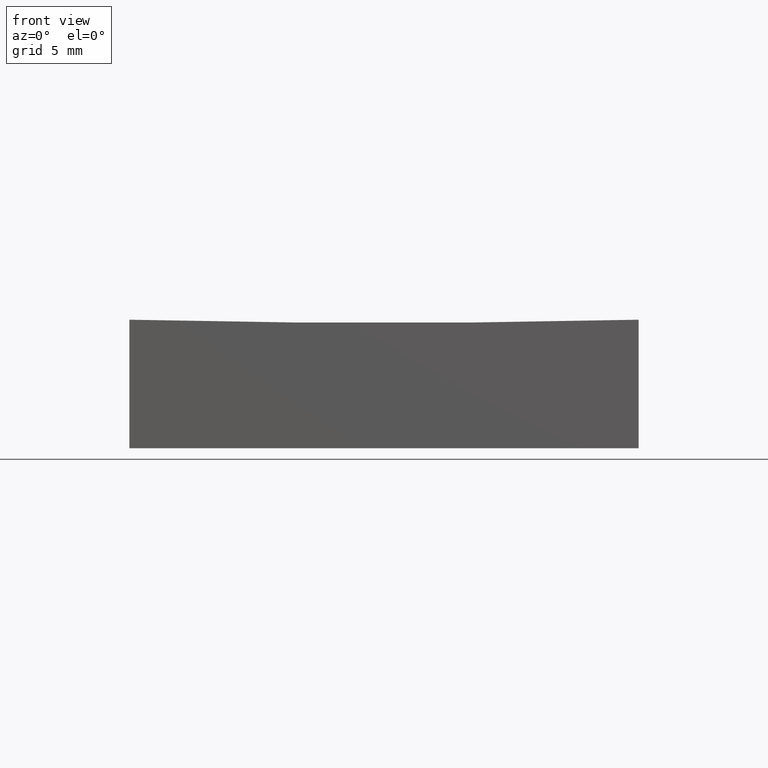
[diagram: clean part render]
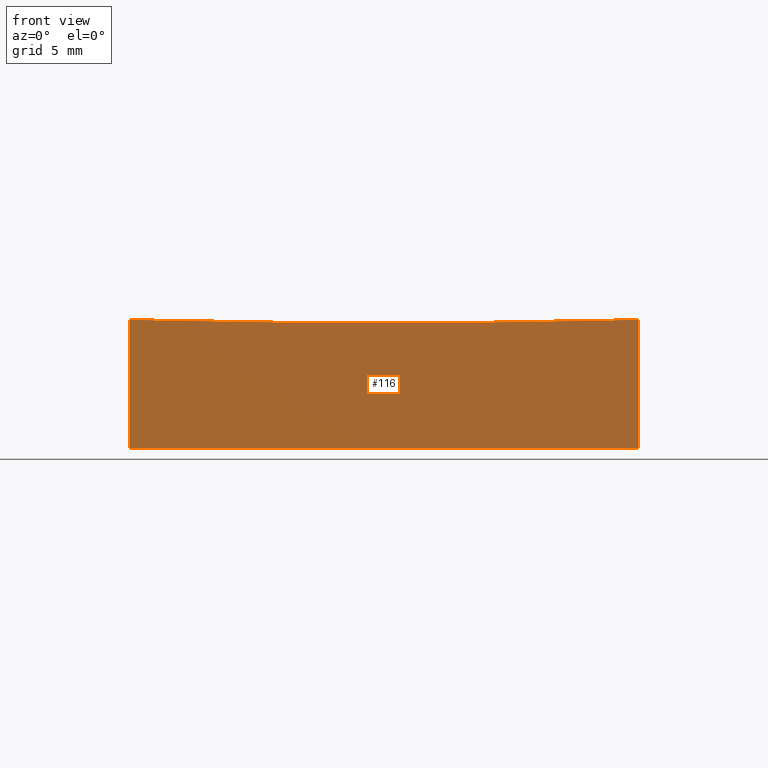
[diagram: same view with one face highlighted and labeled with its STEP entity id]
A machine part, front view. The second image highlights one B-rep face of the part: STEP entity #116.
In plain terms, the highlighted planar face has unit normal (0, 1, 0).
Its self-contained STEP definition (entity closure, byte-faithful):
#5 = EDGE_LOOP ( 'NONE', ( #184, #37, #93, #158 ) ) ;
#10 = CARTESIAN_POINT ( 'NONE',  ( -12.49999999999999645, -12.50000000000000000, 0.0000000000000000000 ) ) ;
#23 = VERTEX_POINT ( 'NONE', #75 ) ;
#24 = CARTESIAN_POINT ( 'NONE',  ( 12.50000000000000355, -12.50000000000000000, 20.00000000000000000 ) ) ;
#36 = AXIS2_PLACEMENT_3D ( 'NONE', #192, #221, #129 ) ;
#37 = ORIENTED_EDGE ( 'NONE', *, *, #237, .T. ) ;
#46 = DIRECTION ( 'NONE',  ( -0.0000000000000000000, -0.0000000000000000000, -1.000000000000000000 ) ) ;
#67 = LINE ( 'NONE', #87, #100 ) ;
#70 = LINE ( 'NONE', #10, #244 ) ;
#74 = FACE_OUTER_BOUND ( 'NONE', #5, .T. ) ;
#75 = CARTESIAN_POINT ( 'NONE',  ( 12.50000000000000355, -12.50000000000000000, 0.0000000000000000000 ) ) ;
#77 = EDGE_CURVE ( 'NONE', #161, #23, #200, .T. ) ;
#83 = CARTESIAN_POINT ( 'NONE',  ( -12.49999999999999645, -12.50000000000000000, 20.00000000000000000 ) ) ;
#87 = CARTESIAN_POINT ( 'NONE',  ( -12.49999999999999645, -12.50000000000000000, 20.00000000000000000 ) ) ;
#91 = DIRECTION ( 'NONE',  ( 0.0000000000000000000, 1.000000000000000000, 0.0000000000000000000 ) ) ;
#93 = ORIENTED_EDGE ( 'NONE', *, *, #137, .T. ) ;
#100 = VECTOR ( 'NONE', #46, 1000.000000000000000 ) ;
#113 = CARTESIAN_POINT ( 'NONE',  ( -12.49999999999999645, -12.50000000000000000, 6.312597717332835145 ) ) ;
#116 = ADVANCED_FACE ( 'NONE', ( #74 ), #195, .F. ) ;
#129 = DIRECTION ( 'NONE',  ( 0.0000000000000000000, 0.0000000000000000000, 1.000000000000000000 ) ) ;
#131 = DIRECTION ( 'NONE',  ( 0.0000000000000000000, -0.0000000000000000000, 1.000000000000000000 ) ) ;
#137 = EDGE_CURVE ( 'NONE', #141, #142, #67, .T. ) ;
#141 = VERTEX_POINT ( 'NONE', #113 ) ;
#142 = VERTEX_POINT ( 'NONE', #190 ) ;
#151 = EDGE_CURVE ( 'NONE', #142, #23, #70, .T. ) ;
#154 = CIRCLE ( 'NONE', #36, 499.8437255783050546 ) ;
#158 = ORIENTED_EDGE ( 'NONE', *, *, #151, .T. ) ;
#159 = AXIS2_PLACEMENT_3D ( 'NONE', #83, #91, #131 ) ;
#161 = VERTEX_POINT ( 'NONE', #225 ) ;
#175 = DIRECTION ( 'NONE',  ( 1.000000000000000000, 0.0000000000000000000, 0.0000000000000000000 ) ) ;
#183 = VECTOR ( 'NONE', #238, 1000.000000000000000 ) ;
#184 = ORIENTED_EDGE ( 'NONE', *, *, #77, .F. ) ;
#190 = CARTESIAN_POINT ( 'NONE',  ( -12.49999999999999645, -12.50000000000000000, 0.0000000000000000000 ) ) ;
#192 = CARTESIAN_POINT ( 'NONE',  ( 6.196712803685608594E-14, -12.50000000000000000, 506.0000000000000000 ) ) ;
#195 = PLANE ( 'NONE',  #159 ) ;
#200 = LINE ( 'NONE', #24, #183 ) ;
#221 = DIRECTION ( 'NONE',  ( 0.0000000000000000000, 1.000000000000000000, 0.0000000000000000000 ) ) ;
#225 = CARTESIAN_POINT ( 'NONE',  ( 12.50000000000000355, -12.50000000000000000, 6.312597717332835145 ) ) ;
#237 = EDGE_CURVE ( 'NONE', #161, #141, #154, .T. ) ;
#238 = DIRECTION ( 'NONE',  ( -0.0000000000000000000, -0.0000000000000000000, -1.000000000000000000 ) ) ;
#244 = VECTOR ( 'NONE', #175, 1000.000000000000000 ) ;